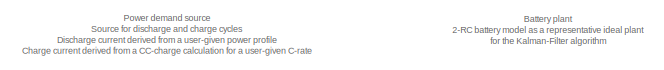
[diagram: root canvas - part 1/3, top left region]
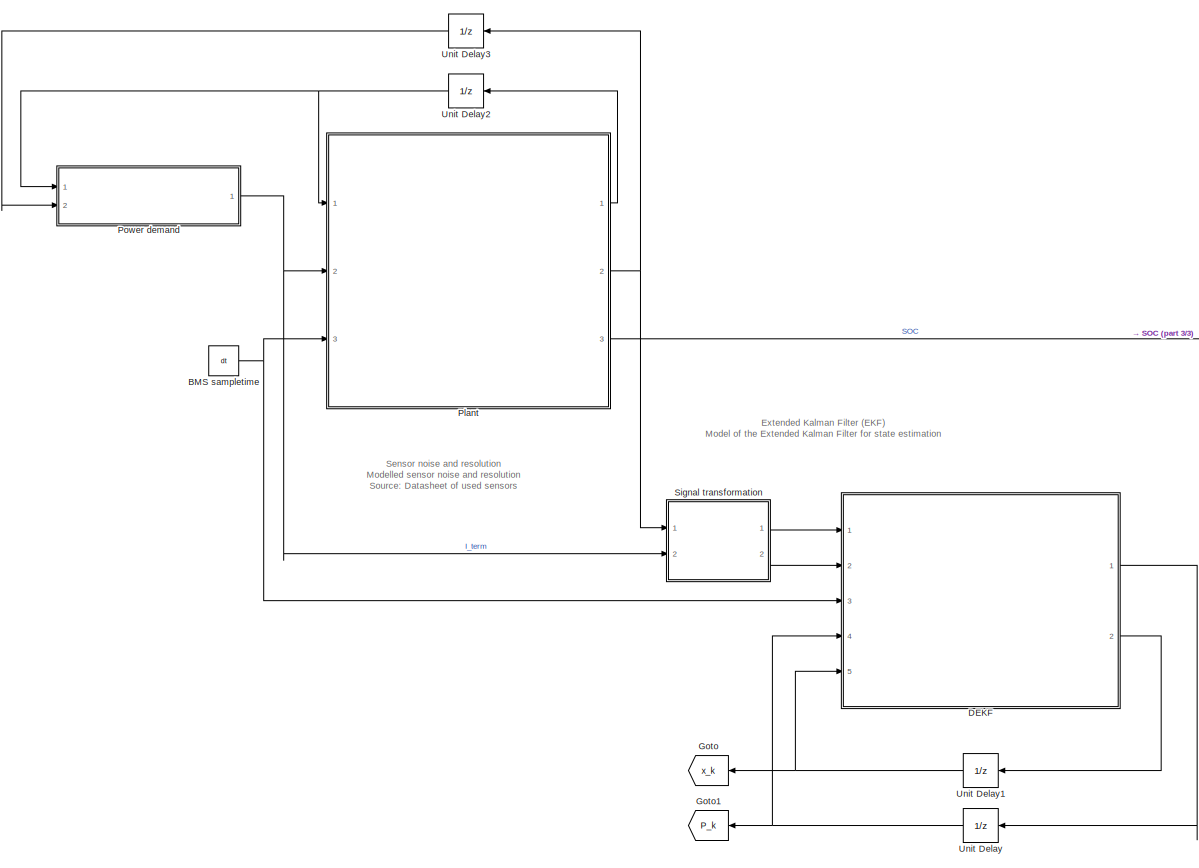
[diagram: root canvas - part 2/3, center side, full height]
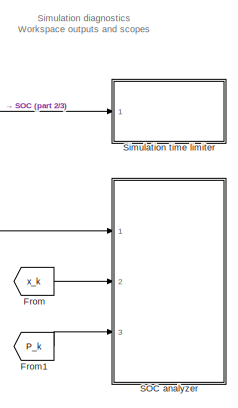
[diagram: root canvas - part 3/3, middle right region]
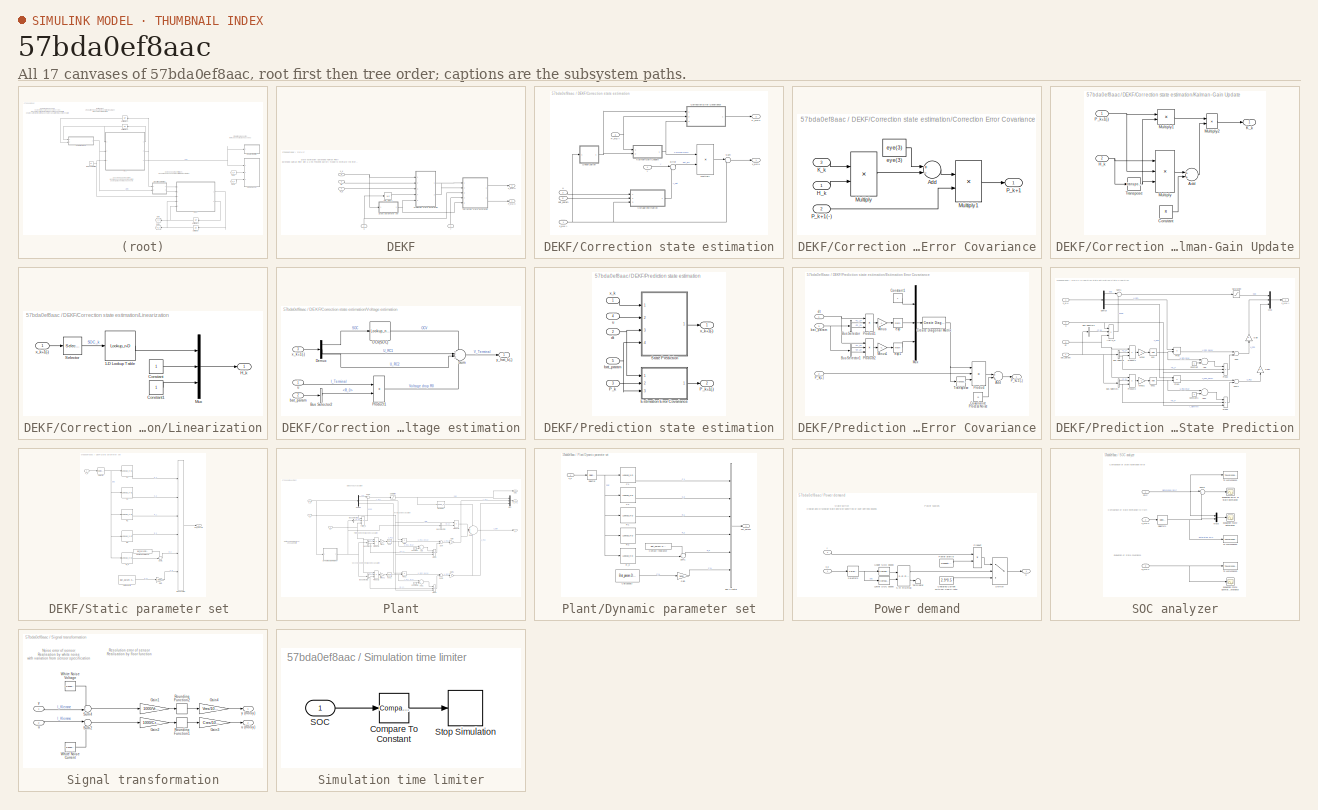
[diagram: thumbnail index - all 17 canvases of the model, root first then tree order]
MODEL slx_57bda0ef8aac
KIND model
CONFIG AbsTol = auto
CONFIG EnableMultiTasking = on
CONFIG FixedStep = dt
CONFIG MaxStep = auto
CONFIG MinStep = auto
CONFIG PreLoadFcn = % Quest\nchoice = questdlg('Would you like to load an initial dataset to your workspace?', ...\n	'Simulink', ...\n	'Yes', 'No', 'No');\n% Handle response\nswitch choice\n    case 'Yes'\n        load('Initialization.mat')\n    case 'No'\n    clearvars choice\nend
CONFIG RelTol = 1e-3
CONFIG SampleTimeConstraint = Unconstrained
CONFIG Solver = FixedStepDiscrete
CONFIG SolverName = FixedStepDiscrete
CONFIG StartTime = 0.0
CONFIG StopTime = inf
BLOCK [Constant] BMS sampletime
  Value = dt
BLOCK [SubSystem] DEKF
  Ports = [5, 2]
  RequestExecContextInheritance = off
  Variant = off
BLOCK [SubSystem] DEKF/Correction state estimation
  Ports = [5, 2]
  RequestExecContextInheritance = off
  Variant = off
BLOCK [SubSystem] DEKF/Correction state estimation/Correction Error Covariance
  Ports = [3, 1]
  RequestExecContextInheritance = off
  Variant = off
BLOCK [Sum] DEKF/Correction state estimation/Correction Error Covariance/Add
  InputSameDT = off
  Inputs = +-
  OutDataTypeStr = Inherit: Inherit via internal rule
  Ports = [2, 1]
  SaturateOnIntegerOverflow = off
BLOCK [Inport] DEKF/Correction state estimation/Correction Error Covariance/H_k
  IconDisplay = Port number
BLOCK [Inport] DEKF/Correction state estimation/Correction Error Covariance/K_k
  IconDisplay = Port number
  Port = 3
BLOCK [Product] DEKF/Correction state estimation/Correction Error Covariance/Multiply
  InputSameDT = off
  Inputs = **
  Multiplication = Matrix(*)
  OutDataTypeStr = Inherit: Inherit via internal rule
  Ports = [2, 1]
  RndMeth = Floor
  SaturateOnIntegerOverflow = off
BLOCK [Product] DEKF/Correction state estimation/Correction Error Covariance/Multiply1
  InputSameDT = off
  Inputs = **
  Multiplication = Matrix(*)
  OutDataTypeStr = Inherit: Inherit via internal rule
  Ports = [2, 1]
  RndMeth = Floor
  SaturateOnIntegerOverflow = off
BLOCK [Outport] DEKF/Correction state estimation/Correction Error Covariance/P_k+1
  IconDisplay = Port number
BLOCK [Inport] DEKF/Correction state estimation/Correction Error Covariance/P_k+1(-)
  IconDisplay = Port number
  Port = 2
BLOCK [Constant] DEKF/Correction state estimation/Correction Error Covariance/eye(3)
  Value = eye(3)
BLOCK [Sum] DEKF/Correction state estimation/Error
  IconShape = round
  InputSameDT = off
  Inputs = |+-
  OutDataTypeStr = Inherit: Inherit via internal rule
  Ports = [2, 1]
  SaturateOnIntegerOverflow = off
BLOCK [SubSystem] DEKF/Correction state estimation/Kalman-Gain Update
  Ports = [2, 1]
  RequestExecContextInheritance = off
  Variant = off
BLOCK [Sum] DEKF/Correction state estimation/Kalman-Gain Update/Add
  InputSameDT = off
  OutDataTypeStr = Inherit: Inherit via internal rule
  Ports = [2, 1]
  SaturateOnIntegerOverflow = off
BLOCK [Constant] DEKF/Correction state estimation/Kalman-Gain Update/Constant
  Value = R
BLOCK [Inport] DEKF/Correction state estimation/Kalman-Gain Update/H_k
  IconDisplay = Port number
  Port = 2
BLOCK [Outport] DEKF/Correction state estimation/Kalman-Gain Update/K_k
  IconDisplay = Port number
BLOCK [Product] DEKF/Correction state estimation/Kalman-Gain Update/Multiply
  InputSameDT = off
  Inputs = ***
  Multiplication = Matrix(*)
  OutDataTypeStr = Inherit: Inherit via internal rule
  Ports = [3, 1]
  RndMeth = Floor
  SaturateOnIntegerOverflow = off
BLOCK [Product] DEKF/Correction state estimation/Kalman-Gain Update/Multiply1
  InputSameDT = off
  Inputs = **
  Multiplication = Matrix(*)
  OutDataTypeStr = Inherit: Inherit via internal rule
  Ports = [2, 1]
  RndMeth = Floor
  SaturateOnIntegerOverflow = off
BLOCK [Product] DEKF/Correction state estimation/Kalman-Gain Update/Multiply2
  InputSameDT = off
  Inputs = */
  Multiplication = Matrix(*)
  OutDataTypeStr = Inherit: Inherit via internal rule
  Ports = [2, 1]
  RndMeth = Floor
  SaturateOnIntegerOverflow = off
BLOCK [Inport] DEKF/Correction state estimation/Kalman-Gain Update/P_k+1(-)
  IconDisplay = Port number
BLOCK [Math] DEKF/Correction state estimation/Kalman-Gain Update/Transpose
  Operator = transpose
  Ports = [1, 1]
BLOCK [SubSystem] DEKF/Correction state estimation/Linearization
  Ports = [1, 1]
  RequestExecContextInheritance = off
  Variant = off
BLOCK [Lookup_n-D] DEKF/Correction state estimation/Linearization/1-D Lookup Table
  BreakpointsForDimension1 = Bat_param.Static.OCV.SOC
  ExtrapMethod = Clip
  InternalRulePriority = Speed
  NumberOfTableDimensions = 1
  Ports = [1, 1]
  RndMeth = Simplest
  Table = (size(Bat_param.Static.OCV.U,2)-1)*(gradient(Bat_param.Static.OCV.U))
  UseLastTableValue = on
BLOCK [Constant] DEKF/Correction state estimation/Linearization/Constant
BLOCK [Constant] DEKF/Correction state estimation/Linearization/Constant1
BLOCK [Outport] DEKF/Correction state estimation/Linearization/H_k
  IconDisplay = Port number
  PortDimensions = [1 3]
BLOCK [Mux] DEKF/Correction state estimation/Linearization/Mux
  DisplayOption = bar
  Inputs = 3
  Ports = [3, 1]
BLOCK [Selector] DEKF/Correction state estimation/Linearization/Selector
  IndexOptions = Index vector (dialog)
  Indices = [1]
  InputPortWidth = 3
  OutputSizes = 1
  Ports = [1, 1]
BLOCK [Inport] DEKF/Correction state estimation/Linearization/x_k+1(-)
  IconDisplay = Port number
BLOCK [Product] DEKF/Correction state estimation/Multiply
  InputSameDT = off
  Inputs = **
  Multiplication = Matrix(*)
  OutDataTypeStr = Inherit: Inherit via internal rule
  Ports = [2, 1]
  RndMeth = Floor
  SaturateOnIntegerOverflow = off
BLOCK [Outport] DEKF/Correction state estimation/P_k+1(+)
  IconDisplay = Port number
  Port = 2
BLOCK [Inport] DEKF/Correction state estimation/P_k+1(-)
  IconDisplay = Port number
  Port = 2
BLOCK [Sum] DEKF/Correction state estimation/Sum
  IconShape = round
  InputSameDT = off
  Inputs = |++
  OutDataTypeStr = Inherit: Inherit via internal rule
  Ports = [2, 1]
  SaturateOnIntegerOverflow = off
BLOCK [SubSystem] DEKF/Correction state estimation/Voltage estimation
  Ports = [3, 1]
  RequestExecContextInheritance = off
  Variant = off
BLOCK [BusSelector] DEKF/Correction state estimation/Voltage estimation/Bus Selector2
  OutputAsBus = off
  OutputSignals = R_0
  Ports = [1, 1]
BLOCK [Demux] DEKF/Correction state estimation/Voltage estimation/Demux
  DisplayOption = bar
  Outputs = 3
  Ports = [1, 3]
BLOCK [Lookup_n-D] DEKF/Correction state estimation/Voltage estimation/OCV(SOC)
  BreakpointsForDimension1 = Bat_param.Static.OCV.SOC
  ExtrapMethod = Clip
  InternalRulePriority = Speed
  NumberOfTableDimensions = 1
  Ports = [1, 1]
  RndMeth = Simplest
  Table = Bat_param.Static.OCV.U
  UseLastTableValue = on
BLOCK [Product] DEKF/Correction state estimation/Voltage estimation/Product1
  InputSameDT = off
  Inputs = **
  OutDataTypeStr = Inherit: Inherit via internal rule
  Ports = [2, 1]
  RndMeth = Floor
  SaturateOnIntegerOverflow = off
BLOCK [Sum] DEKF/Correction state estimation/Voltage estimation/Sum
  IconShape = round
  InputSameDT = off
  Inputs = ++++
  OutDataTypeStr = Inherit: Inherit via internal rule
  Ports = [4, 1]
  SaturateOnIntegerOverflow = off
BLOCK [Inport] DEKF/Correction state estimation/Voltage estimation/bat_param
  IconDisplay = Port number
  Port = 2
BLOCK [Inport] DEKF/Correction state estimation/Voltage estimation/u
  IconDisplay = Port number
BLOCK [Inport] DEKF/Correction state estimation/Voltage estimation/x_k+1(-)
  IconDisplay = Port number
  Port = 3
  PortDimensions = [3 1]
BLOCK [Outport] DEKF/Correction state estimation/Voltage estimation/y_hat_k(-)
  IconDisplay = Port number
BLOCK [Inport] DEKF/Correction state estimation/bat_param
  IconDisplay = Port number
  Port = 5
BLOCK [Inport] DEKF/Correction state estimation/u
  IconDisplay = Port number
  Port = 3
BLOCK [Outport] DEKF/Correction state estimation/x_k+1(+)
  IconDisplay = Port number
BLOCK [Inport] DEKF/Correction state estimation/x_k+1(-)
  IconDisplay = Port number
BLOCK [Inport] DEKF/Correction state estimation/y
  IconDisplay = Port number
  Port = 4
BLOCK [Inport] DEKF/P_k
  IconDisplay = Port number
  Port = 4
BLOCK [Outport] DEKF/P_k+1(+)
  IconDisplay = Port number
BLOCK [SubSystem] DEKF/Prediction state estimation
  Ports = [5, 2]
  RequestExecContextInheritance = off
  Variant = off
BLOCK [SubSystem] DEKF/Prediction state estimation/Estimation Error Covariance
  Ports = [3, 1]
  RequestExecContextInheritance = off
  Variant = off
BLOCK [Sum] DEKF/Prediction state estimation/Estimation Error Covariance/Add
  InputSameDT = off
  OutDataTypeStr = Inherit: Inherit via internal rule
  Ports = [2, 1]
  SaturateOnIntegerOverflow = off
BLOCK [BusSelector] DEKF/Prediction state estimation/Estimation Error Covariance/Bus Selector
  OutputAsBus = off
  OutputSignals = C_1,R_1
  Ports = [1, 2]
BLOCK [BusSelector] DEKF/Prediction state estimation/Estimation Error Covariance/Bus Selector1
  OutputAsBus = off
  OutputSignals = C_2,R_2
  Ports = [1, 2]
BLOCK [Constant] DEKF/Prediction state estimation/Estimation Error Covariance/Constant1
BLOCK [Constant] DEKF/Prediction state estimation/Estimation Error Covariance/Covariance Process Noise
  Value = Q
BLOCK [Reference] DEKF/Prediction state estimation/Estimation Error Covariance/Create Diagonal Matrix  REF=dspmtrx3/Create Diagonal
Matrix
  Ports = [1, 1]
  SourceBlock = dspmtrx3/Create Diagonal\nMatrix
  SourceProductBaseCode = DS
  SourceProductName = DSP System Toolbox
  SourceType = Create Diagonal Matrix
BLOCK [Gain] DEKF/Prediction state estimation/Estimation Error Covariance/Minus
  Gain = -1
  OutDataTypeStr = Inherit: Inherit via internal rule
  ParamDataTypeStr = Inherit: Inherit via internal rule
  SaturateOnIntegerOverflow = off
BLOCK [Gain] DEKF/Prediction state estimation/Estimation Error Covariance/Minus1
  Gain = -1
  OutDataTypeStr = Inherit: Inherit via internal rule
  ParamDataTypeStr = Inherit: Inherit via internal rule
  SaturateOnIntegerOverflow = off
BLOCK [Mux] DEKF/Prediction state estimation/Estimation Error Covariance/Mux
  DisplayOption = bar
  Inputs = 3
  Ports = [3, 1]
BLOCK [Inport] DEKF/Prediction state estimation/Estimation Error Covariance/P_k(+)
  IconDisplay = Port number
  Port = 2
BLOCK [Outport] DEKF/Prediction state estimation/Estimation Error Covariance/P_k+1(-)
  IconDisplay = Port number
BLOCK [Product] DEKF/Prediction state estimation/Estimation Error Covariance/Product
  InputSameDT = off
  Inputs = ***
  Multiplication = Matrix(*)
  OutDataTypeStr = Inherit: Inherit via internal rule
  Ports = [3, 1]
  RndMeth = Floor
  SaturateOnIntegerOverflow = off
BLOCK [Product] DEKF/Prediction state estimation/Estimation Error Covariance/Product1
  InputSameDT = off
  Inputs = *//
  OutDataTypeStr = Inherit: Inherit via internal rule
  Ports = [3, 1]
  RndMeth = Floor
  SaturateOnIntegerOverflow = off
BLOCK [Product] DEKF/Prediction state estimation/Estimation Error Covariance/Product2
  InputSameDT = off
  Inputs = *//
  OutDataTypeStr = Inherit: Inherit via internal rule
  Ports = [3, 1]
  RndMeth = Floor
  SaturateOnIntegerOverflow = off
BLOCK [Math] DEKF/Prediction state estimation/Estimation Error Covariance/Transpose
  Operator = transpose
  Ports = [1, 1]
BLOCK [Inport] DEKF/Prediction state estimation/Estimation Error Covariance/bat_param
  IconDisplay = Port number
  Port = 3
BLOCK [Inport] DEKF/Prediction state estimation/Estimation Error Covariance/dt
  IconDisplay = Port number
BLOCK [Math] DEKF/Prediction state estimation/Estimation Error Covariance/exp
  Ports = [1, 1]
BLOCK [Math] DEKF/Prediction state estimation/Estimation Error Covariance/exp1
  Ports = [1, 1]
BLOCK [Inport] DEKF/Prediction state estimation/P_k
  IconDisplay = Port number
  Port = 3
  PortDimensions = [3 3]
BLOCK [Outport] DEKF/Prediction state estimation/P_k+1(-)
  IconDisplay = Port number
  Port = 2
  PortDimensions = [3 3]
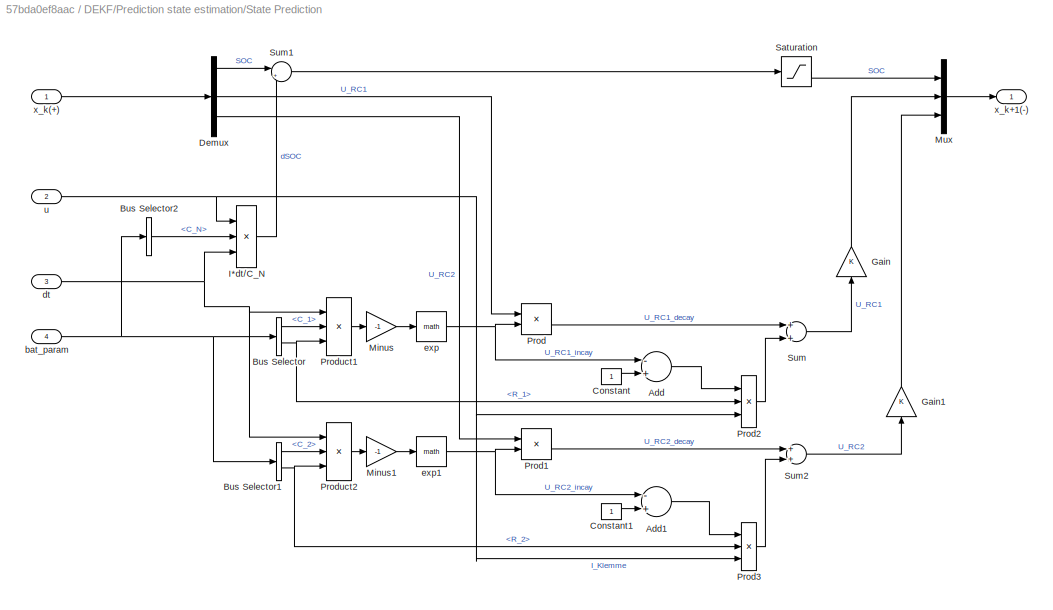
BLOCK [SubSystem] DEKF/Prediction state estimation/State Prediction
  Ports = [4, 1]
  RequestExecContextInheritance = off
  Variant = off
BLOCK [Sum] DEKF/Prediction state estimation/State Prediction/Add
  InputSameDT = off
  Inputs = -+
  OutDataTypeStr = Inherit: Inherit via internal rule
  Ports = [2, 1]
  SaturateOnIntegerOverflow = off
BLOCK [Sum] DEKF/Prediction state estimation/State Prediction/Add1
  InputSameDT = off
  Inputs = -+
  OutDataTypeStr = Inherit: Inherit via internal rule
  Ports = [2, 1]
  SaturateOnIntegerOverflow = off
BLOCK [BusSelector] DEKF/Prediction state estimation/State Prediction/Bus Selector
  OutputAsBus = off
  OutputSignals = C_1,R_1
  Ports = [1, 2]
BLOCK [BusSelector] DEKF/Prediction state estimation/State Prediction/Bus Selector1
  OutputAsBus = off
  OutputSignals = C_2,R_2
  Ports = [1, 2]
BLOCK [BusSelector] DEKF/Prediction state estimation/State Prediction/Bus Selector2
  OutputAsBus = off
  OutputSignals = C_N
  Ports = [1, 1]
BLOCK [Constant] DEKF/Prediction state estimation/State Prediction/Constant
BLOCK [Constant] DEKF/Prediction state estimation/State Prediction/Constant1
BLOCK [Demux] DEKF/Prediction state estimation/State Prediction/Demux
  DisplayOption = bar
  Outputs = 3
  Ports = [1, 3]
BLOCK [Gain] DEKF/Prediction state estimation/State Prediction/Gain
  OutDataTypeStr = Inherit: Inherit via internal rule
  ParamDataTypeStr = Inherit: Inherit via internal rule
  SaturateOnIntegerOverflow = off
BLOCK [Gain] DEKF/Prediction state estimation/State Prediction/Gain1
  OutDataTypeStr = Inherit: Inherit via internal rule
  ParamDataTypeStr = Inherit: Inherit via internal rule
  SaturateOnIntegerOverflow = off
BLOCK [Product] DEKF/Prediction state estimation/State Prediction/I*dt//C_N
  InputSameDT = off
  Inputs = */*
  OutDataTypeStr = Inherit: Inherit via internal rule
  Ports = [3, 1]
  RndMeth = Floor
  SaturateOnIntegerOverflow = off
BLOCK [Gain] DEKF/Prediction state estimation/State Prediction/Minus
  Gain = -1
  OutDataTypeStr = Inherit: Inherit via internal rule
  ParamDataTypeStr = Inherit: Inherit via internal rule
  SaturateOnIntegerOverflow = off
BLOCK [Gain] DEKF/Prediction state estimation/State Prediction/Minus1
  Gain = -1
  OutDataTypeStr = Inherit: Inherit via internal rule
  ParamDataTypeStr = Inherit: Inherit via internal rule
  SaturateOnIntegerOverflow = off
BLOCK [Mux] DEKF/Prediction state estimation/State Prediction/Mux
  DisplayOption = bar
  Inputs = 3
  Ports = [3, 1]
BLOCK [Product] DEKF/Prediction state estimation/State Prediction/Prod
  InputSameDT = off
  Inputs = **
  OutDataTypeStr = Inherit: Inherit via internal rule
  Ports = [2, 1]
  RndMeth = Floor
  SaturateOnIntegerOverflow = off
BLOCK [Product] DEKF/Prediction state estimation/State Prediction/Prod1
  InputSameDT = off
  Inputs = **
  OutDataTypeStr = Inherit: Inherit via internal rule
  Ports = [2, 1]
  RndMeth = Floor
  SaturateOnIntegerOverflow = off
BLOCK [Product] DEKF/Prediction state estimation/State Prediction/Prod2
  InputSameDT = off
  Inputs = ***
  OutDataTypeStr = Inherit: Inherit via internal rule
  Ports = [3, 1]
  RndMeth = Floor
  SaturateOnIntegerOverflow = off
BLOCK [Product] DEKF/Prediction state estimation/State Prediction/Prod3
  InputSameDT = off
  Inputs = ***
  OutDataTypeStr = Inherit: Inherit via internal rule
  Ports = [3, 1]
  RndMeth = Floor
  SaturateOnIntegerOverflow = off
BLOCK [Product] DEKF/Prediction state estimation/State Prediction/Product1
  InputSameDT = off
  Inputs = *//
  OutDataTypeStr = Inherit: Inherit via internal rule
  Ports = [3, 1]
  RndMeth = Floor
  SaturateOnIntegerOverflow = off
BLOCK [Product] DEKF/Prediction state estimation/State Prediction/Product2
  InputSameDT = off
  Inputs = *//
  OutDataTypeStr = Inherit: Inherit via internal rule
  Ports = [3, 1]
  RndMeth = Floor
  SaturateOnIntegerOverflow = off
BLOCK [Saturate] DEKF/Prediction state estimation/State Prediction/Saturation
  InputPortMap = u0
  LowerLimit = 0
  Ports = [1, 1]
  UpperLimit = 1
BLOCK [Sum] DEKF/Prediction state estimation/State Prediction/Sum
  InputSameDT = off
  OutDataTypeStr = Inherit: Inherit via internal rule
  Ports = [2, 1]
  SaturateOnIntegerOverflow = off
BLOCK [Sum] DEKF/Prediction state estimation/State Prediction/Sum1
  IconShape = round
  InputSameDT = off
  Inputs = |++
  OutDataTypeStr = Inherit: Inherit via internal rule
  Ports = [2, 1]
  SaturateOnIntegerOverflow = off
BLOCK [Sum] DEKF/Prediction state estimation/State Prediction/Sum2
  InputSameDT = off
  OutDataTypeStr = Inherit: Inherit via internal rule
  Ports = [2, 1]
  SaturateOnIntegerOverflow = off
BLOCK [Inport] DEKF/Prediction state estimation/State Prediction/bat_param
  IconDisplay = Port number
  Port = 4
BLOCK [Inport] DEKF/Prediction state estimation/State Prediction/dt
  IconDisplay = Port number
  Port = 3
  PortDimensions = [1 1]
BLOCK [Math] DEKF/Prediction state estimation/State Prediction/exp
  Ports = [1, 1]
BLOCK [Math] DEKF/Prediction state estimation/State Prediction/exp1
  Ports = [1, 1]
BLOCK [Inport] DEKF/Prediction state estimation/State Prediction/u
  IconDisplay = Port number
  Port = 2
  PortDimensions = [1 1]
BLOCK [Inport] DEKF/Prediction state estimation/State Prediction/x_k(+)
  IconDisplay = Port number
  PortDimensions = [3 1]
BLOCK [Outport] DEKF/Prediction state estimation/State Prediction/x_k+1(-)
  IconDisplay = Port number
  PortDimensions = [3 1]
BLOCK [Inport] DEKF/Prediction state estimation/bat_param
  IconDisplay = Port number
  Port = 5
BLOCK [Inport] DEKF/Prediction state estimation/dt
  IconDisplay = Port number
  Port = 2
BLOCK [Inport] DEKF/Prediction state estimation/u
  IconDisplay = Port number
  Port = 4
BLOCK [Inport] DEKF/Prediction state estimation/x_k
  IconDisplay = Port number
BLOCK [Outport] DEKF/Prediction state estimation/x_k+1(-)
  IconDisplay = Port number
BLOCK [SubSystem] DEKF/Static parameter set 
  Ports = [1, 1]
  RequestExecContextInheritance = off
  Variant = off
BLOCK [BusCreator] DEKF/Static parameter set /Bus Creator
  DisplayOption = bar
  InheritFromInputs = on
  Inputs = 6
  Ports = [6, 1]
BLOCK [Lookup_n-D] DEKF/Static parameter set /C1
  BreakpointsForDimension1 = Bat_param.Static.SOC
  BreakpointsForDimension2 = Bat_param.Static.C_rate
  BreakpointsForDimension3 = temperature_LTrange
  ExtrapMethod = Clip
  InternalRulePriority = Speed
  NumberOfTableDimensions = 1
  Ports = [1, 1]
  RndMeth = Simplest
  Table = Bat_param.Static.C_1
  UseLastTableValue = on
BLOCK [Lookup_n-D] DEKF/Static parameter set /C2
  BreakpointsForDimension1 = Bat_param.Static.SOC
  BreakpointsForDimension2 = Bat_param.Static.C_rate
  BreakpointsForDimension3 = temperature_LTrange
  ExtrapMethod = Clip
  InternalRulePriority = Speed
  NumberOfTableDimensions = 1
  Ports = [1, 1]
  RndMeth = Simplest
  Table = Bat_param.Static.C_2
  UseLastTableValue = on
BLOCK [Constant] DEKF/Static parameter set /Cell capacity
  Value = Bat_param.Static.C_n
BLOCK [Constant] DEKF/Static parameter set /Contact resistance
  Value = Bat_param.Static.R_con
BLOCK [Gain] DEKF/Static parameter set /Gain
  Gain = 3600
  OutDataTypeStr = Inherit: Inherit via internal rule
  ParamDataTypeStr = Inherit: Inherit via internal rule
  SaturateOnIntegerOverflow = off
BLOCK [Lookup_n-D] DEKF/Static parameter set /R1
  BreakpointsForDimension1 = Bat_param.Static.SOC
  BreakpointsForDimension2 = Bat_param.Static.C_rate
  BreakpointsForDimension3 = temperature_LTrange
  ExtrapMethod = Clip
  InternalRulePriority = Speed
  NumberOfTableDimensions = 1
  Ports = [1, 1]
  RndMeth = Simplest
  Table = Bat_param.Static.R_1
  UseLastTableValue = on
BLOCK [Lookup_n-D] DEKF/Static parameter set /R2
  BreakpointsForDimension1 = Bat_param.Static.SOC
  BreakpointsForDimension2 = Bat_param.Static.C_rate
  BreakpointsForDimension3 = temperature_LTrange
  ExtrapMethod = Clip
  InternalRulePriority = Speed
  NumberOfTableDimensions = 1
  Ports = [1, 1]
  RndMeth = Simplest
  Table = Bat_param.Static.R_2
  UseLastTableValue = on
BLOCK [Lookup_n-D] DEKF/Static parameter set /R_0
  BreakpointsForDimension1 = Bat_param.Static.SOC
  BreakpointsForDimension2 = Bat_param.Dyn.C_rate
  BreakpointsForDimension3 = temperature_LTrange
  ExtrapMethod = Clip
  InternalRulePriority = Speed
  NumberOfTableDimensions = 1
  Ports = [1, 1]
  RndMeth = Simplest
  Table = Bat_param.Static.R_0
  UseLastTableValue = on
BLOCK [Selector] DEKF/Static parameter set /Selector
  IndexOptions = Index vector (dialog)
  Indices = 1
  InputPortWidth = 3
  OutputSizes = 1
  Ports = [1, 1]
BLOCK [Sum] DEKF/Static parameter set /Sum1
  IconShape = round
  InputSameDT = off
  Inputs = ++|
  OutDataTypeStr = Inherit: Inherit via internal rule
  Ports = [2, 1]
  SaturateOnIntegerOverflow = off
BLOCK [Outport] DEKF/Static parameter set /bat_param
  IconDisplay = Port number
BLOCK [Inport] DEKF/Static parameter set /x_k
  IconDisplay = Port number
  PortDimensions = [3 1]
BLOCK [UnitDelay] DEKF/Unit Delay1
  InputProcessing = Elements as channels (sample based)
  SampleTime = -1
BLOCK [Inport] DEKF/dt
  IconDisplay = Port number
  Port = 3
BLOCK [Inport] DEKF/u
  IconDisplay = Port number
  Port = 2
  PortDimensions = [1 1]
BLOCK [Inport] DEKF/x_k
  IconDisplay = Port number
  Port = 5
  PortDimensions = [3 1]
BLOCK [Outport] DEKF/x_k+1(+)
  IconDisplay = Port number
  Port = 2
BLOCK [Inport] DEKF/y
  IconDisplay = Port number
  PortDimensions = 1
BLOCK [From] From
  GotoTag = x_k
BLOCK [From] From1
  GotoTag = P_k
BLOCK [Goto] Goto
  GotoTag = x_k
BLOCK [Goto] Goto1
  GotoTag = P_k
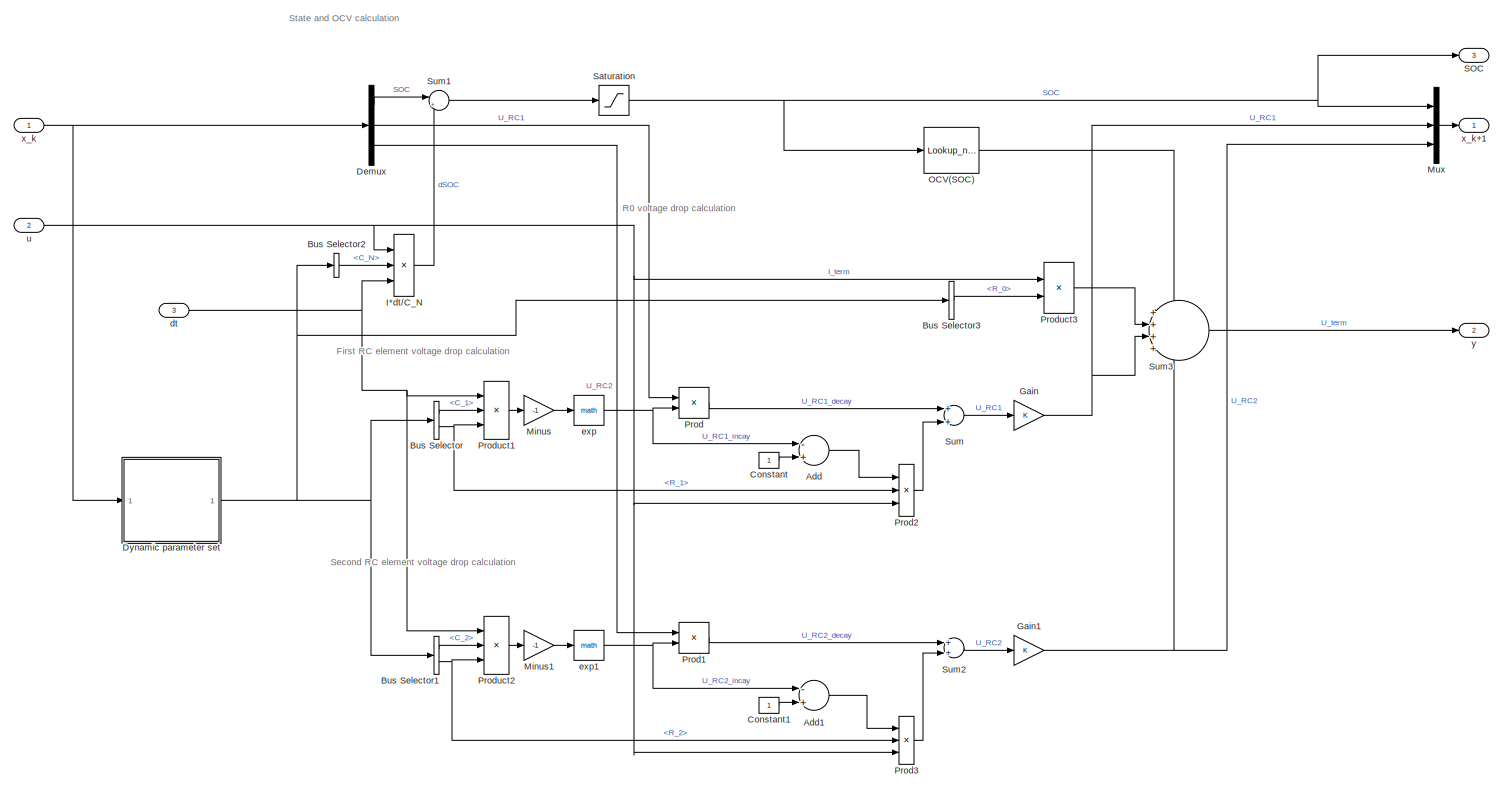
[diagram: Plant - part 1/2, most of the canvas]
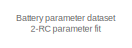
[diagram: Plant - part 2/2, middle left region]
BLOCK [SubSystem] Plant
  Ports = [3, 3]
  RequestExecContextInheritance = off
  Variant = off
BLOCK [Sum] Plant/Add
  InputSameDT = off
  Inputs = -+
  OutDataTypeStr = Inherit: Inherit via internal rule
  Ports = [2, 1]
  SaturateOnIntegerOverflow = off
BLOCK [Sum] Plant/Add1
  InputSameDT = off
  Inputs = -+
  OutDataTypeStr = Inherit: Inherit via internal rule
  Ports = [2, 1]
  SaturateOnIntegerOverflow = off
BLOCK [BusSelector] Plant/Bus Selector
  OutputAsBus = off
  OutputSignals = C_1,R_1
  Ports = [1, 2]
BLOCK [BusSelector] Plant/Bus Selector1
  OutputAsBus = off
  OutputSignals = C_2,R_2
  Ports = [1, 2]
BLOCK [BusSelector] Plant/Bus Selector2
  OutputAsBus = off
  OutputSignals = C_N
  Ports = [1, 1]
BLOCK [BusSelector] Plant/Bus Selector3
  OutputAsBus = off
  OutputSignals = R_0
  Ports = [1, 1]
BLOCK [Constant] Plant/Constant
BLOCK [Constant] Plant/Constant1
BLOCK [Demux] Plant/Demux
  DisplayOption = bar
  Outputs = 3
  Ports = [1, 3]
BLOCK [SubSystem] Plant/Dynamic parameter set
  Ports = [1, 1]
  RequestExecContextInheritance = off
  Variant = off
BLOCK [BusCreator] Plant/Dynamic parameter set/Bus Creator
  DisplayOption = bar
  InheritFromInputs = on
  Inputs = 6
  Ports = [6, 1]
BLOCK [Lookup_n-D] Plant/Dynamic parameter set/C1
  BreakpointsForDimension1 = Bat_param.Dyn.SOC
  BreakpointsForDimension2 = Bat_param.Dyn.C_rate
  BreakpointsForDimension3 = temperature_LTrange
  ExtrapMethod = Clip
  InternalRulePriority = Speed
  NumberOfTableDimensions = 1
  Ports = [1, 1]
  RndMeth = Simplest
  Table = Bat_param.Dyn.C_1
  UseLastTableValue = on
BLOCK [Lookup_n-D] Plant/Dynamic parameter set/C2
  BreakpointsForDimension1 = Bat_param.Dyn.SOC
  BreakpointsForDimension2 = Bat_param.Dyn.C_rate
  BreakpointsForDimension3 = temperature_LTrange
  ExtrapMethod = Clip
  InternalRulePriority = Speed
  NumberOfTableDimensions = 1
  Ports = [1, 1]
  RndMeth = Simplest
  Table = Bat_param.Dyn.C_2
  UseLastTableValue = on
BLOCK [Constant] Plant/Dynamic parameter set/Cell capacity
  Value = Bat_param.Dyn.C_n
BLOCK [Constant] Plant/Dynamic parameter set/Contact resistance
  Value = Bat_param.Dyn.R_con
BLOCK [Gain] Plant/Dynamic parameter set/Gain
  Gain = 3600
  OutDataTypeStr = Inherit: Inherit via internal rule
  ParamDataTypeStr = Inherit: Inherit via internal rule
  SaturateOnIntegerOverflow = off
BLOCK [Lookup_n-D] Plant/Dynamic parameter set/R1
  BreakpointsForDimension1 = Bat_param.Dyn.SOC
  BreakpointsForDimension2 = Bat_param.Dyn.C_rate
  BreakpointsForDimension3 = temperature_LTrange
  ExtrapMethod = Clip
  InternalRulePriority = Speed
  NumberOfTableDimensions = 1
  Ports = [1, 1]
  RndMeth = Simplest
  Table = Bat_param.Dyn.R_1
  UseLastTableValue = on
BLOCK [Lookup_n-D] Plant/Dynamic parameter set/R2
  BreakpointsForDimension1 = Bat_param.Dyn.SOC
  BreakpointsForDimension2 = Bat_param.Dyn.C_rate
  BreakpointsForDimension3 = temperature_LTrange
  ExtrapMethod = Clip
  InternalRulePriority = Speed
  NumberOfTableDimensions = 1
  Ports = [1, 1]
  RndMeth = Simplest
  Table = Bat_param.Dyn.R_2
  UseLastTableValue = on
BLOCK [Lookup_n-D] Plant/Dynamic parameter set/R_0
  BreakpointsForDimension1 = Bat_param.Dyn.SOC
  BreakpointsForDimension2 = Bat_param.Dyn.C_rate
  BreakpointsForDimension3 = temperature_LTrange
  ExtrapMethod = Clip
  InternalRulePriority = Speed
  NumberOfTableDimensions = 1
  Ports = [1, 1]
  RndMeth = Simplest
  Table = Bat_param.Dyn.R_0
  UseLastTableValue = on
BLOCK [Selector] Plant/Dynamic parameter set/Selector
  IndexOptions = Index vector (dialog)
  Indices = 1
  InputPortWidth = 3
  OutputSizes = 1
  Ports = [1, 1]
BLOCK [Sum] Plant/Dynamic parameter set/Sum1
  IconShape = round
  InputSameDT = off
  Inputs = ++|
  OutDataTypeStr = Inherit: Inherit via internal rule
  Ports = [2, 1]
  SaturateOnIntegerOverflow = off
BLOCK [Outport] Plant/Dynamic parameter set/bat_param
  IconDisplay = Port number
BLOCK [Inport] Plant/Dynamic parameter set/x_k
  IconDisplay = Port number
  PortDimensions = [3 1]
BLOCK [Gain] Plant/Gain
  OutDataTypeStr = Inherit: Inherit via internal rule
  ParamDataTypeStr = Inherit: Inherit via internal rule
  SaturateOnIntegerOverflow = off
BLOCK [Gain] Plant/Gain1
  OutDataTypeStr = Inherit: Inherit via internal rule
  ParamDataTypeStr = Inherit: Inherit via internal rule
  SaturateOnIntegerOverflow = off
BLOCK [Product] Plant/I*dt//C_N
  InputSameDT = off
  Inputs = */*
  OutDataTypeStr = Inherit: Inherit via internal rule
  Ports = [3, 1]
  RndMeth = Floor
  SaturateOnIntegerOverflow = off
BLOCK [Gain] Plant/Minus
  Gain = -1
  OutDataTypeStr = Inherit: Inherit via internal rule
  ParamDataTypeStr = Inherit: Inherit via internal rule
  SaturateOnIntegerOverflow = off
BLOCK [Gain] Plant/Minus1
  Gain = -1
  OutDataTypeStr = Inherit: Inherit via internal rule
  ParamDataTypeStr = Inherit: Inherit via internal rule
  SaturateOnIntegerOverflow = off
BLOCK [Mux] Plant/Mux
  DisplayOption = bar
  Inputs = 3
  Ports = [3, 1]
BLOCK [Lookup_n-D] Plant/OCV(SOC)
  BreakpointsForDimension1 = Bat_param.Dyn.OCV.SOC
  ExtrapMethod = Clip
  InternalRulePriority = Speed
  NumberOfTableDimensions = 1
  Ports = [1, 1]
  RndMeth = Simplest
  Table = Bat_param.Dyn.OCV.U
  UseLastTableValue = on
BLOCK [Product] Plant/Prod
  InputSameDT = off
  Inputs = **
  OutDataTypeStr = Inherit: Inherit via internal rule
  Ports = [2, 1]
  RndMeth = Floor
  SaturateOnIntegerOverflow = off
BLOCK [Product] Plant/Prod1
  InputSameDT = off
  Inputs = **
  OutDataTypeStr = Inherit: Inherit via internal rule
  Ports = [2, 1]
  RndMeth = Floor
  SaturateOnIntegerOverflow = off
BLOCK [Product] Plant/Prod2
  InputSameDT = off
  Inputs = ***
  OutDataTypeStr = Inherit: Inherit via internal rule
  Ports = [3, 1]
  RndMeth = Floor
  SaturateOnIntegerOverflow = off
BLOCK [Product] Plant/Prod3
  InputSameDT = off
  Inputs = ***
  OutDataTypeStr = Inherit: Inherit via internal rule
  Ports = [3, 1]
  RndMeth = Floor
  SaturateOnIntegerOverflow = off
BLOCK [Product] Plant/Product1
  InputSameDT = off
  Inputs = *//
  OutDataTypeStr = Inherit: Inherit via internal rule
  Ports = [3, 1]
  RndMeth = Floor
  SaturateOnIntegerOverflow = off
BLOCK [Product] Plant/Product2
  InputSameDT = off
  Inputs = *//
  OutDataTypeStr = Inherit: Inherit via internal rule
  Ports = [3, 1]
  RndMeth = Floor
  SaturateOnIntegerOverflow = off
BLOCK [Product] Plant/Product3
  InputSameDT = off
  Inputs = **
  OutDataTypeStr = Inherit: Inherit via internal rule
  Ports = [2, 1]
  RndMeth = Floor
  SaturateOnIntegerOverflow = off
BLOCK [Outport] Plant/SOC
  IconDisplay = Port number
  Port = 3
BLOCK [Saturate] Plant/Saturation
  InputPortMap = u0
  LowerLimit = 0
  Ports = [1, 1]
  UpperLimit = 1
BLOCK [Sum] Plant/Sum
  InputSameDT = off
  OutDataTypeStr = Inherit: Inherit via internal rule
  Ports = [2, 1]
  SaturateOnIntegerOverflow = off
BLOCK [Sum] Plant/Sum1
  IconShape = round
  InputSameDT = off
  Inputs = |++
  OutDataTypeStr = Inherit: Inherit via internal rule
  Ports = [2, 1]
  SaturateOnIntegerOverflow = off
BLOCK [Sum] Plant/Sum2
  InputSameDT = off
  OutDataTypeStr = Inherit: Inherit via internal rule
  Ports = [2, 1]
  SaturateOnIntegerOverflow = off
BLOCK [Sum] Plant/Sum3
  IconShape = round
  InputSameDT = off
  Inputs = ++++
  OutDataTypeStr = Inherit: Inherit via internal rule
  Ports = [4, 1]
  SaturateOnIntegerOverflow = off
BLOCK [Inport] Plant/dt
  IconDisplay = Port number
  Port = 3
BLOCK [Math] Plant/exp
  Ports = [1, 1]
BLOCK [Math] Plant/exp1
  Ports = [1, 1]
BLOCK [Inport] Plant/u
  IconDisplay = Port number
  Port = 2
  PortDimensions = [1 1]
BLOCK [Inport] Plant/x_k
  IconDisplay = Port number
  PortDimensions = [3 1]
BLOCK [Outport] Plant/x_k+1
  IconDisplay = Port number
BLOCK [Outport] Plant/y
  IconDisplay = Port number
  Port = 2
BLOCK [SubSystem] Power demand
  Ports = [2, 1]
  RequestExecContextInheritance = off
  Variant = off
BLOCK [Constant] Power demand/Charging Current with specified C-rate
  Value = 2.9*0.5
BLOCK [Reference] Power demand/Lower SOC bound  REF=simulink/Logic and Bit
Operations/Compare
To Constant
  Ports = [1, 1]
  SourceBlock = simulink/Logic and Bit\nOperations/Compare\nTo Constant
  SourceProductBaseCode = SL
  SourceProductName = Simulink
  SourceType = Compare To Constant
BLOCK [Reference] Power demand/Power profile  REF=simulink/Sources/Repeating
Sequence
  Ports = [0, 1]
  SourceBlock = simulink/Sources/Repeating\nSequence
  SourceProductBaseCode = SL
  SourceProductName = Simulink
  SourceType = Repeating table
BLOCK [Product] Power demand/Product
  InputSameDT = off
  Inputs = /*
  OutDataTypeStr = Inherit: Inherit via internal rule
  Ports = [2, 1]
  RndMeth = Floor
  SaturateOnIntegerOverflow = off
BLOCK [Reference] Power demand/S-R Flip-Flop  REF=simulink_extras/Flip Flops/S-R
Flip-Flop
  Ports = [2, 2]
  SourceBlock = simulink_extras/Flip Flops/S-R\nFlip-Flop
  SourceProductBaseCode = SL
  SourceProductName = Simulink
  SourceType = SRFlipFlop
BLOCK [Selector] Power demand/Selector3
  IndexOptions = Index vector (dialog)
  Indices = 1
  InputPortWidth = 3
  OutputSizes = 1
  Ports = [1, 1]
BLOCK [Switch] Power demand/Switch
  Criteria = u2 > Threshold
  InputSameDT = off
  SaturateOnIntegerOverflow = off
BLOCK [Terminator] Power demand/Terminator
BLOCK [Reference] Power demand/Upper SOC bound  REF=simulink/Logic and Bit
Operations/Compare
To Constant
  Ports = [1, 1]
  SourceBlock = simulink/Logic and Bit\nOperations/Compare\nTo Constant
  SourceProductBaseCode = SL
  SourceProductName = Simulink
  SourceType = Compare To Constant
BLOCK [Outport] Power demand/u
  IconDisplay = Port number
BLOCK [Inport] Power demand/x_k
  IconDisplay = Port number
BLOCK [Inport] Power demand/y
  IconDisplay = Port number
  Port = 2
BLOCK [SubSystem] SOC analyzer
  Ports = [3]
  RequestExecContextInheritance = off
  Variant = off
BLOCK [Scope] SOC analyzer/Evaluation Error of State Estimation
  NumInputPorts = 1
  Ports = [1]
  ScopeSpecificationString = Simulink.scopes.TimeScopeBlockCfg('CurrentConfiguration', extmgr.ConfigurationSet(extmgr.Configuration('Core','General UI',true),extmgr.Configuration('Core','Source UI',true),extmgr.Configuration('Sources','WiredSimulink',true,'DataLoggingVariableName','ScopeData2','DataLoggingSaveFormat','Array','DataLoggingDecimation','1','DataLoggingDecimateData',true),extmgr.Configuration('Visuals','Time Domai...<+1526ch>
BLOCK [Scope] SOC analyzer/Evaluation State Estimation
  NumInputPorts = 1
  Ports = [1]
  ScopeSpecificationString = Simulink.scopes.TimeScopeBlockCfg('CurrentConfiguration', extmgr.ConfigurationSet(extmgr.Configuration('Core','General UI',true),extmgr.Configuration('Core','Source UI',true),extmgr.Configuration('Sources','WiredSimulink',true,'DataLoggingVariableName','ScopeData4'),extmgr.Configuration('Visuals','Time Domain',true,'SerializedDisplays',{struct('MinYLimReal','-0.01254','MaxYLimReal','1.1125','YLabe...<+1456ch>
BLOCK [Scope] SOC analyzer/Evaluation State Estimation Covariance
  NumInputPorts = 1
  Ports = [1]
  ScopeSpecificationString = Simulink.scopes.TimeScopeBlockCfg('CurrentConfiguration', extmgr.ConfigurationSet(extmgr.Configuration('Core','General UI',true),extmgr.Configuration('Core','Source UI',true),extmgr.Configuration('Sources','WiredSimulink',true,'DataLoggingVariableName','ScopeData1','DataLoggingSaveFormat','Array','DataLoggingDecimation','1','DataLoggingDecimateData',true),extmgr.Configuration('Visuals','Time Domai...<+1475ch>
BLOCK [Mux] SOC analyzer/Mux3
  DisplayOption = bar
  Inputs = 2
  Ports = [2, 1]
BLOCK [Inport] SOC analyzer/P_k+1(+)
  IconDisplay = Port number
  Port = 3
BLOCK [Inport] SOC analyzer/SOC
  IconDisplay = Port number
BLOCK [Selector] SOC analyzer/Selector1
  IndexOptions = Index vector (dialog)
  Indices = [1]
  InputPortWidth = 3
  OutputSizes = 1
  Ports = [1, 1]
BLOCK [Sum] SOC analyzer/Sum6
  IconShape = round
  InputSameDT = off
  Inputs = |+-
  OutDataTypeStr = Inherit: Inherit via internal rule
  Ports = [2, 1]
  SaturateOnIntegerOverflow = off
BLOCK [ToWorkspace] SOC analyzer/To Workspace1
  FixptAsFi = on
  MaxDataPoints = inf
  Ports = [1]
  SampleTime = -1
  Save2DSignal = 3-D array (concatenate along third dimension)
  SaveFormat = Structure With Time
  VariableName = SOC_ref
BLOCK [ToWorkspace] SOC analyzer/To Workspace2
  FixptAsFi = on
  MaxDataPoints = inf
  Ports = [1]
  SampleTime = -1
  Save2DSignal = 3-D array (concatenate along third dimension)
  SaveFormat = Structure With Time
  VariableName = SOC_est
BLOCK [ToWorkspace] SOC analyzer/To Workspace3
  FixptAsFi = on
  MaxDataPoints = inf
  Ports = [1]
  SampleTime = -1
  Save2DSignal = 3-D array (concatenate along third dimension)
  SaveFormat = Structure With Time
  VariableName = P_est
BLOCK [Inport] SOC analyzer/x_k+1(+)
  IconDisplay = Port number
  Port = 2
BLOCK [SubSystem] Signal transformation
  Ports = [2, 2]
  RequestExecContextInheritance = off
  Variant = off
BLOCK [Gain] Signal transformation/Gain1
  Gain = 1000/Vres
  OutDataTypeStr = Inherit: Inherit via internal rule
  ParamDataTypeStr = Inherit: Inherit via internal rule
  SaturateOnIntegerOverflow = off
BLOCK [Gain] Signal transformation/Gain2
  Gain = 1000/Cres
  OutDataTypeStr = Inherit: Inherit via internal rule
  ParamDataTypeStr = Inherit: Inherit via internal rule
  SaturateOnIntegerOverflow = off
BLOCK [Gain] Signal transformation/Gain3
  Gain = Cres/1000
  OutDataTypeStr = Inherit: Inherit via internal rule
  ParamDataTypeStr = Inherit: Inherit via internal rule
  SaturateOnIntegerOverflow = off
BLOCK [Gain] Signal transformation/Gain4
  Gain = Vres/1000
  OutDataTypeStr = Inherit: Inherit via internal rule
  ParamDataTypeStr = Inherit: Inherit via internal rule
  SaturateOnIntegerOverflow = off
BLOCK [Rounding] Signal transformation/Rounding Function1
BLOCK [Rounding] Signal transformation/Rounding Function2
BLOCK [Sum] Signal transformation/Sum2
  IconShape = round
  InputSameDT = off
  Inputs = |++
  OutDataTypeStr = Inherit: Inherit via internal rule
  Ports = [2, 1]
  SaturateOnIntegerOverflow = off
BLOCK [Sum] Signal transformation/Sum4
  IconShape = round
  InputSameDT = off
  Inputs = ++|
  OutDataTypeStr = Inherit: Inherit via internal rule
  Ports = [2, 1]
  SaturateOnIntegerOverflow = off
BLOCK [RandomNumber] Signal transformation/White Noise Current
  DisableCoverage = on
  SampleTime = dt
  Seed = 23341
  Variance = Cnoise
BLOCK [RandomNumber] Signal transformation/White Noise Voltage
  DisableCoverage = on
  SampleTime = dt
  Seed = 23341
  Variance = Vnoise
BLOCK [Inport] Signal transformation/u
  IconDisplay = Port number
  Port = 2
BLOCK [Outport] Signal transformation/u (noisy)
  IconDisplay = Port number
  Port = 2
BLOCK [Inport] Signal transformation/y
  IconDisplay = Port number
BLOCK [Outport] Signal transformation/y (noisy)
  IconDisplay = Port number
BLOCK [SubSystem] Simulation time limiter
  Ports = [1]
  RequestExecContextInheritance = off
  Variant = off
BLOCK [Reference] Simulation time limiter/Compare To Constant  REF=simulink/Logic and Bit
Operations/Compare
To Constant
  Ports = [1, 1]
  SourceBlock = simulink/Logic and Bit\nOperations/Compare\nTo Constant
  SourceProductBaseCode = SL
  SourceProductName = Simulink
  SourceType = Compare To Constant
BLOCK [Inport] Simulation time limiter/SOC
  IconDisplay = Port number
BLOCK [Stop] Simulation time limiter/Stop Simulation
BLOCK [UnitDelay] Unit Delay
  InitialCondition = P_init
  InputProcessing = Elements as channels (sample based)
  SampleTime = -1
BLOCK [UnitDelay] Unit Delay1
  InitialCondition = x_init
  InputProcessing = Elements as channels (sample based)
  SampleTime = -1
BLOCK [UnitDelay] Unit Delay2
  InitialCondition = Bat_param.Dyn.Bat_init
  InputProcessing = Elements as channels (sample based)
  SampleTime = -1
BLOCK [UnitDelay] Unit Delay3
  InitialCondition = interp1(Bat_param.Dyn.OCV.SOC,Bat_param.Dyn.OCV.U,Bat_param.Dyn.Bat_init(1))
  InputProcessing = Elements as channels (sample based)
  SampleTime = -1
ANNOTATION (root): Battery plant 2-RC battery model as a representative ideal plant for the Kalman-Filter algorithm
ANNOTATION (root): Power demand source Source for discharge and charge cycles Discharge current derived from a user-given power profile Charge current derived from a CC-charge calculation for a user-given C-rate
ANNOTATION (root): Sensor noise and resolution Modelled sensor noise and resolution Source: Datasheet of used sensors
ANNOTATION (root): Simulation diagnostics Workspace outputs and scopes
ANNOTATION (root): Extended Kalman Filter (EKF) Model of the Extended Kalman Filter for state estimation
ANNOTATION DEKF: State estimation (Extended Kalman Filter) Extended Kalman Filter with a 2-RC Thevenin battery model to estimate the internal states (e.g. SOC) of the battery plant
ANNOTATION Plant: First RC element voltage drop calculation
ANNOTATION Plant: R0 voltage drop calculation
ANNOTATION Plant: Second RC element voltage drop calculation
ANNOTATION Plant: State and OCV calculation
ANNOTATION Plant: Battery parameter dataset 2-RC parameter fit
ANNOTATION Power demand: Power sources
ANNOTATION Power demand: State switch Charge and Discharge state decision specified by user-defined bounds
ANNOTATION SOC analyzer: Comparison of state estimation error
ANNOTATION SOC analyzer: Comparison of state estimation to truth
ANNOTATION SOC analyzer: Evaluation of state covariance
ANNOTATION Signal transformation: Noise error of sensor Realisation by white noise with variation from sensor specification
ANNOTATION Signal transformation: Resolution error of sensor Realisation by floor function
NET BMS sampletime:1 -> DEKF:3, Plant:3
LINE DEKF/Correction state estimation/Correction Error Covariance/Add:1 -> DEKF/Correction state estimation/Correction Error Covariance/Multiply1:1
LINE DEKF/Correction state estimation/Correction Error Covariance/H_k:1 -> DEKF/Correction state estimation/Correction Error Covariance/Multiply:2
LINE DEKF/Correction state estimation/Correction Error Covariance/K_k:1 -> DEKF/Correction state estimation/Correction Error Covariance/Multiply:1
LINE DEKF/Correction state estimation/Correction Error Covariance/Multiply1:1 -> DEKF/Correction state estimation/Correction Error Covariance/P_k+1:1
LINE DEKF/Correction state estimation/Correction Error Covariance/Multiply:1 -> DEKF/Correction state estimation/Correction Error Covariance/Add:2
LINE DEKF/Correction state estimation/Correction Error Covariance/P_k+1(-):1 -> DEKF/Correction state estimation/Correction Error Covariance/Multiply1:2
LINE DEKF/Correction state estimation/Correction Error Covariance/eye(3):1 -> DEKF/Correction state estimation/Correction Error Covariance/Add:1
LINE DEKF/Correction state estimation/Correction Error Covariance:1 -> DEKF/Correction state estimation/P_k+1(+):1
LINE DEKF/Correction state estimation/Error:1 -> DEKF/Correction state estimation/Multiply:2
LINE DEKF/Correction state estimation/Kalman-Gain Update/Add:1 -> DEKF/Correction state estimation/Kalman-Gain Update/Multiply2:2
LINE DEKF/Correction state estimation/Kalman-Gain Update/Constant:1 -> DEKF/Correction state estimation/Kalman-Gain Update/Add:2
NET DEKF/Correction state estimation/Kalman-Gain Update/H_k:1 -> DEKF/Correction state estimation/Kalman-Gain Update/Multiply:1, DEKF/Correction state estimation/Kalman-Gain Update/Transpose:1
LINE DEKF/Correction state estimation/Kalman-Gain Update/Multiply1:1 -> DEKF/Correction state estimation/Kalman-Gain Update/Multiply2:1
LINE DEKF/Correction state estimation/Kalman-Gain Update/Multiply2:1 -> DEKF/Correction state estimation/Kalman-Gain Update/K_k:1
LINE DEKF/Correction state estimation/Kalman-Gain Update/Multiply:1 -> DEKF/Correction state estimation/Kalman-Gain Update/Add:1
NET DEKF/Correction state estimation/Kalman-Gain Update/P_k+1(-):1 -> DEKF/Correction state estimation/Kalman-Gain Update/Multiply1:1, DEKF/Correction state estimation/Kalman-Gain Update/Multiply:2
NET DEKF/Correction state estimation/Kalman-Gain Update/Transpose:1 -> DEKF/Correction state estimation/Kalman-Gain Update/Multiply1:2, DEKF/Correction state estimation/Kalman-Gain Update/Multiply:3
NET DEKF/Correction state estimation/Kalman-Gain Update:1 -> DEKF/Correction state estimation/Correction Error Covariance:3, DEKF/Correction state estimation/Multiply:1
LINE DEKF/Correction state estimation/Linearization/1-D Lookup Table:1 -> DEKF/Correction state estimation/Linearization/Mux:1
LINE DEKF/Correction state estimation/Linearization/Constant1:1 -> DEKF/Correction state estimation/Linearization/Mux:3
LINE DEKF/Correction state estimation/Linearization/Constant:1 -> DEKF/Correction state estimation/Linearization/Mux:2
LINE DEKF/Correction state estimation/Linearization/Mux:1 -> DEKF/Correction state estimation/Linearization/H_k:1
LINE DEKF/Correction state estimation/Linearization/Selector:1 -> DEKF/Correction state estimation/Linearization/1-D Lookup Table:1
LINE DEKF/Correction state estimation/Linearization/x_k+1(-):1 -> DEKF/Correction state estimation/Linearization/Selector:1
NET DEKF/Correction state estimation/Linearization:1 -> DEKF/Correction state estimation/Correction Error Covariance:1, DEKF/Correction state estimation/Kalman-Gain Update:2
LINE DEKF/Correction state estimation/Multiply:1 -> DEKF/Correction state estimation/Sum:1
NET DEKF/Correction state estimation/P_k+1(-):1 -> DEKF/Correction state estimation/Correction Error Covariance:2, DEKF/Correction state estimation/Kalman-Gain Update:1
LINE DEKF/Correction state estimation/Sum:1 -> DEKF/Correction state estimation/x_k+1(+):1
LINE DEKF/Correction state estimation/Voltage estimation/Bus Selector2:1 -> DEKF/Correction state estimation/Voltage estimation/Product1:2
LINE DEKF/Correction state estimation/Voltage estimation/Demux:1 -> DEKF/Correction state estimation/Voltage estimation/OCV(SOC):1
LINE DEKF/Correction state estimation/Voltage estimation/Demux:2 -> DEKF/Correction state estimation/Voltage estimation/Sum:2
LINE DEKF/Correction state estimation/Voltage estimation/Demux:3 -> DEKF/Correction state estimation/Voltage estimation/Sum:3
LINE DEKF/Correction state estimation/Voltage estimation/OCV(SOC):1 -> DEKF/Correction state estimation/Voltage estimation/Sum:1
LINE DEKF/Correction state estimation/Voltage estimation/Product1:1 -> DEKF/Correction state estimation/Voltage estimation/Sum:4
LINE DEKF/Correction state estimation/Voltage estimation/Sum:1 -> DEKF/Correction state estimation/Voltage estimation/y_hat_k(-):1
LINE DEKF/Correction state estimation/Voltage estimation/bat_param:1 -> DEKF/Correction state estimation/Voltage estimation/Bus Selector2:1
LINE DEKF/Correction state estimation/Voltage estimation/u:1 -> DEKF/Correction state estimation/Voltage estimation/Product1:1
LINE DEKF/Correction state estimation/Voltage estimation/x_k+1(-):1 -> DEKF/Correction state estimation/Voltage estimation/Demux:1
LINE DEKF/Correction state estimation/Voltage estimation:1 -> DEKF/Correction state estimation/Error:2
LINE DEKF/Correction state estimation/bat_param:1 -> DEKF/Correction state estimation/Voltage estimation:2
LINE DEKF/Correction state estimation/u:1 -> DEKF/Correction state estimation/Voltage estimation:1
NET DEKF/Correction state estimation/x_k+1(-):1 -> DEKF/Correction state estimation/Linearization:1, DEKF/Correction state estimation/Sum:2, DEKF/Correction state estimation/Voltage estimation:3
LINE DEKF/Correction state estimation/y:1 -> DEKF/Correction state estimation/Error:1
LINE DEKF/Correction state estimation:1 -> DEKF/x_k+1(+):1
LINE DEKF/Correction state estimation:2 -> DEKF/P_k+1(+):1
LINE DEKF/P_k:1 -> DEKF/Prediction state estimation:3
LINE DEKF/Prediction state estimation/Estimation Error Covariance/Add:1 -> DEKF/Prediction state estimation/Estimation Error Covariance/P_k+1(-):1
LINE DEKF/Prediction state estimation/Estimation Error Covariance/Bus Selector1:1 -> DEKF/Prediction state estimation/Estimation Error Covariance/Product2:2
LINE DEKF/Prediction state estimation/Estimation Error Covariance/Bus Selector1:2 -> DEKF/Prediction state estimation/Estimation Error Covariance/Product2:3
LINE DEKF/Prediction state estimation/Estimation Error Covariance/Bus Selector:1 -> DEKF/Prediction state estimation/Estimation Error Covariance/Product1:2
LINE DEKF/Prediction state estimation/Estimation Error Covariance/Bus Selector:2 -> DEKF/Prediction state estimation/Estimation Error Covariance/Product1:3
LINE DEKF/Prediction state estimation/Estimation Error Covariance/Constant1:1 -> DEKF/Prediction state estimation/Estimation Error Covariance/Mux:1
LINE DEKF/Prediction state estimation/Estimation Error Covariance/Covariance Process Noise:1 -> DEKF/Prediction state estimation/Estimation Error Covariance/Add:2
NET DEKF/Prediction state estimation/Estimation Error Covariance/Create Diagonal Matrix:1 -> DEKF/Prediction state estimation/Estimation Error Covariance/Product:1, DEKF/Prediction state estimation/Estimation Error Covariance/Transpose:1
LINE DEKF/Prediction state estimation/Estimation Error Covariance/Minus1:1 -> DEKF/Prediction state estimation/Estimation Error Covariance/exp1:1
LINE DEKF/Prediction state estimation/Estimation Error Covariance/Minus:1 -> DEKF/Prediction state estimation/Estimation Error Covariance/exp:1
LINE DEKF/Prediction state estimation/Estimation Error Covariance/Mux:1 -> DEKF/Prediction state estimation/Estimation Error Covariance/Create Diagonal Matrix:1
LINE DEKF/Prediction state estimation/Estimation Error Covariance/P_k(+):1 -> DEKF/Prediction state estimation/Estimation Error Covariance/Product:2
LINE DEKF/Prediction state estimation/Estimation Error Covariance/Product1:1 -> DEKF/Prediction state estimation/Estimation Error Covariance/Minus:1
LINE DEKF/Prediction state estimation/Estimation Error Covariance/Product2:1 -> DEKF/Prediction state estimation/Estimation Error Covariance/Minus1:1
LINE DEKF/Prediction state estimation/Estimation Error Covariance/Product:1 -> DEKF/Prediction state estimation/Estimation Error Covariance/Add:1
LINE DEKF/Prediction state estimation/Estimation Error Covariance/Transpose:1 -> DEKF/Prediction state estimation/Estimation Error Covariance/Product:3
NET DEKF/Prediction state estimation/Estimation Error Covariance/bat_param:1 -> DEKF/Prediction state estimation/Estimation Error Covariance/Bus Selector1:1, DEKF/Prediction state estimation/Estimation Error Covariance/Bus Selector:1
NET DEKF/Prediction state estimation/Estimation Error Covariance/dt:1 -> DEKF/Prediction state estimation/Estimation Error Covariance/Product1:1, DEKF/Prediction state estimation/Estimation Error Covariance/Product2:1
LINE DEKF/Prediction state estimation/Estimation Error Covariance/exp1:1 -> DEKF/Prediction state estimation/Estimation Error Covariance/Mux:3
LINE DEKF/Prediction state estimation/Estimation Error Covariance/exp:1 -> DEKF/Prediction state estimation/Estimation Error Covariance/Mux:2
LINE DEKF/Prediction state estimation/Estimation Error Covariance:1 -> DEKF/Prediction state estimation/P_k+1(-):1
LINE DEKF/Prediction state estimation/P_k:1 -> DEKF/Prediction state estimation/Estimation Error Covariance:2
LINE DEKF/Prediction state estimation/State Prediction/Add1:1 -> DEKF/Prediction state estimation/State Prediction/Prod3:1
LINE DEKF/Prediction state estimation/State Prediction/Add:1 -> DEKF/Prediction state estimation/State Prediction/Prod2:1
LINE DEKF/Prediction state estimation/State Prediction/Bus Selector1:1 -> DEKF/Prediction state estimation/State Prediction/Product2:2
NET DEKF/Prediction state estimation/State Prediction/Bus Selector1:2 -> DEKF/Prediction state estimation/State Prediction/Prod3:2, DEKF/Prediction state estimation/State Prediction/Product2:3
LINE DEKF/Prediction state estimation/State Prediction/Bus Selector2:1 -> DEKF/Prediction state estimation/State Prediction/I*dt//C_N:2
LINE DEKF/Prediction state estimation/State Prediction/Bus Selector:1 -> DEKF/Prediction state estimation/State Prediction/Product1:2
NET DEKF/Prediction state estimation/State Prediction/Bus Selector:2 -> DEKF/Prediction state estimation/State Prediction/Prod2:2, DEKF/Prediction state estimation/State Prediction/Product1:3
LINE DEKF/Prediction state estimation/State Prediction/Constant1:1 -> DEKF/Prediction state estimation/State Prediction/Add1:2
LINE DEKF/Prediction state estimation/State Prediction/Constant:1 -> DEKF/Prediction state estimation/State Prediction/Add:2
LINE DEKF/Prediction state estimation/State Prediction/Demux:1 -> DEKF/Prediction state estimation/State Prediction/Sum1:1
LINE DEKF/Prediction state estimation/State Prediction/Demux:2 -> DEKF/Prediction state estimation/State Prediction/Prod:1
LINE DEKF/Prediction state estimation/State Prediction/Demux:3 -> DEKF/Prediction state estimation/State Prediction/Prod1:1
LINE DEKF/Prediction state estimation/State Prediction/Gain1:1 -> DEKF/Prediction state estimation/State Prediction/Mux:3
LINE DEKF/Prediction state estimation/State Prediction/Gain:1 -> DEKF/Prediction state estimation/State Prediction/Mux:2
LINE DEKF/Prediction state estimation/State Prediction/I*dt//C_N:1 -> DEKF/Prediction state estimation/State Prediction/Sum1:2
LINE DEKF/Prediction state estimation/State Prediction/Minus1:1 -> DEKF/Prediction state estimation/State Prediction/exp1:1
LINE DEKF/Prediction state estimation/State Prediction/Minus:1 -> DEKF/Prediction state estimation/State Prediction/exp:1
LINE DEKF/Prediction state estimation/State Prediction/Mux:1 -> DEKF/Prediction state estimation/State Prediction/x_k+1(-):1
LINE DEKF/Prediction state estimation/State Prediction/Prod1:1 -> DEKF/Prediction state estimation/State Prediction/Sum2:1
LINE DEKF/Prediction state estimation/State Prediction/Prod2:1 -> DEKF/Prediction state estimation/State Prediction/Sum:2
LINE DEKF/Prediction state estimation/State Prediction/Prod3:1 -> DEKF/Prediction state estimation/State Prediction/Sum2:2
LINE DEKF/Prediction state estimation/State Prediction/Prod:1 -> DEKF/Prediction state estimation/State Prediction/Sum:1
LINE DEKF/Prediction state estimation/State Prediction/Product1:1 -> DEKF/Prediction state estimation/State Prediction/Minus:1
LINE DEKF/Prediction state estimation/State Prediction/Product2:1 -> DEKF/Prediction state estimation/State Prediction/Minus1:1
LINE DEKF/Prediction state estimation/State Prediction/Saturation:1 -> DEKF/Prediction state estimation/State Prediction/Mux:1
LINE DEKF/Prediction state estimation/State Prediction/Sum1:1 -> DEKF/Prediction state estimation/State Prediction/Saturation:1
LINE DEKF/Prediction state estimation/State Prediction/Sum2:1 -> DEKF/Prediction state estimation/State Prediction/Gain1:1
LINE DEKF/Prediction state estimation/State Prediction/Sum:1 -> DEKF/Prediction state estimation/State Prediction/Gain:1
NET DEKF/Prediction state estimation/State Prediction/bat_param:1 -> DEKF/Prediction state estimation/State Prediction/Bus Selector1:1, DEKF/Prediction state estimation/State Prediction/Bus Selector2:1, DEKF/Prediction state estimation/State Prediction/Bus Selector:1
NET DEKF/Prediction state estimation/State Prediction/dt:1 -> DEKF/Prediction state estimation/State Prediction/I*dt//C_N:3, DEKF/Prediction state estimation/State Prediction/Product1:1, DEKF/Prediction state estimation/State Prediction/Product2:1
NET DEKF/Prediction state estimation/State Prediction/exp1:1 -> DEKF/Prediction state estimation/State Prediction/Add1:1, DEKF/Prediction state estimation/State Prediction/Prod1:2
NET DEKF/Prediction state estimation/State Prediction/exp:1 -> DEKF/Prediction state estimation/State Prediction/Add:1, DEKF/Prediction state estimation/State Prediction/Prod:2
NET DEKF/Prediction state estimation/State Prediction/u:1 -> DEKF/Prediction state estimation/State Prediction/I*dt//C_N:1, DEKF/Prediction state estimation/State Prediction/Prod2:3, DEKF/Prediction state estimation/State Prediction/Prod3:3
LINE DEKF/Prediction state estimation/State Prediction/x_k(+):1 -> DEKF/Prediction state estimation/State Prediction/Demux:1
LINE DEKF/Prediction state estimation/State Prediction:1 -> DEKF/Prediction state estimation/x_k+1(-):1
NET DEKF/Prediction state estimation/bat_param:1 -> DEKF/Prediction state estimation/Estimation Error Covariance:3, DEKF/Prediction state estimation/State Prediction:4
NET DEKF/Prediction state estimation/dt:1 -> DEKF/Prediction state estimation/Estimation Error Covariance:1, DEKF/Prediction state estimation/State Prediction:3
LINE DEKF/Prediction state estimation/u:1 -> DEKF/Prediction state estimation/State Prediction:2
LINE DEKF/Prediction state estimation/x_k:1 -> DEKF/Prediction state estimation/State Prediction:1
LINE DEKF/Prediction state estimation:1 -> DEKF/Correction state estimation:1
LINE DEKF/Prediction state estimation:2 -> DEKF/Correction state estimation:2
LINE DEKF/Static parameter set /Bus Creator:1 -> DEKF/Static parameter set /bat_param:1
LINE DEKF/Static parameter set /C1:1 -> DEKF/Static parameter set /Bus Creator:1
LINE DEKF/Static parameter set /C2:1 -> DEKF/Static parameter set /Bus Creator:2
LINE DEKF/Static parameter set /Cell capacity:1 -> DEKF/Static parameter set /Gain:1
LINE DEKF/Static parameter set /Contact resistance:1 -> DEKF/Static parameter set /Sum1:1
LINE DEKF/Static parameter set /Gain:1 -> DEKF/Static parameter set /Bus Creator:6
LINE DEKF/Static parameter set /R1:1 -> DEKF/Static parameter set /Bus Creator:3
LINE DEKF/Static parameter set /R2:1 -> DEKF/Static parameter set /Bus Creator:4
LINE DEKF/Static parameter set /R_0:1 -> DEKF/Static parameter set /Sum1:2
NET DEKF/Static parameter set /Selector:1 -> DEKF/Static parameter set /C1:1, DEKF/Static parameter set /C2:1, DEKF/Static parameter set /R1:1, DEKF/Static parameter set /R2:1, DEKF/Static parameter set /R_0:1
LINE DEKF/Static parameter set /Sum1:1 -> DEKF/Static parameter set /Bus Creator:5
LINE DEKF/Static parameter set /x_k:1 -> DEKF/Static parameter set /Selector:1
NET DEKF/Static parameter set :1 -> DEKF/Correction state estimation:5, DEKF/Prediction state estimation:5
LINE DEKF/Unit Delay1:1 -> DEKF/Prediction state estimation:4
LINE DEKF/dt:1 -> DEKF/Prediction state estimation:2
NET DEKF/u:1 -> DEKF/Correction state estimation:3, DEKF/Unit Delay1:1
NET DEKF/x_k:1 -> DEKF/Prediction state estimation:1, DEKF/Static parameter set :1
LINE DEKF/y:1 -> DEKF/Correction state estimation:4
LINE DEKF:1 -> Unit Delay:1
LINE DEKF:2 -> Unit Delay1:1
LINE From1:1 -> SOC analyzer:3
LINE From:1 -> SOC analyzer:2
LINE Plant/Add1:1 -> Plant/Prod3:1
LINE Plant/Add:1 -> Plant/Prod2:1
LINE Plant/Bus Selector1:1 -> Plant/Product2:2
NET Plant/Bus Selector1:2 -> Plant/Prod3:2, Plant/Product2:3
LINE Plant/Bus Selector2:1 -> Plant/I*dt//C_N:2
LINE Plant/Bus Selector3:1 -> Plant/Product3:2
LINE Plant/Bus Selector:1 -> Plant/Product1:2
NET Plant/Bus Selector:2 -> Plant/Prod2:2, Plant/Product1:3
LINE Plant/Constant1:1 -> Plant/Add1:2
LINE Plant/Constant:1 -> Plant/Add:2
LINE Plant/Demux:1 -> Plant/Sum1:1
LINE Plant/Demux:2 -> Plant/Prod:1
LINE Plant/Demux:3 -> Plant/Prod1:1
LINE Plant/Dynamic parameter set/Bus Creator:1 -> Plant/Dynamic parameter set/bat_param:1
LINE Plant/Dynamic parameter set/C1:1 -> Plant/Dynamic parameter set/Bus Creator:1
LINE Plant/Dynamic parameter set/C2:1 -> Plant/Dynamic parameter set/Bus Creator:2
LINE Plant/Dynamic parameter set/Cell capacity:1 -> Plant/Dynamic parameter set/Gain:1
LINE Plant/Dynamic parameter set/Contact resistance:1 -> Plant/Dynamic parameter set/Sum1:1
LINE Plant/Dynamic parameter set/Gain:1 -> Plant/Dynamic parameter set/Bus Creator:6
LINE Plant/Dynamic parameter set/R1:1 -> Plant/Dynamic parameter set/Bus Creator:3
LINE Plant/Dynamic parameter set/R2:1 -> Plant/Dynamic parameter set/Bus Creator:4
LINE Plant/Dynamic parameter set/R_0:1 -> Plant/Dynamic parameter set/Sum1:2
NET Plant/Dynamic parameter set/Selector:1 -> Plant/Dynamic parameter set/C1:1, Plant/Dynamic parameter set/C2:1, Plant/Dynamic parameter set/R1:1, Plant/Dynamic parameter set/R2:1, Plant/Dynamic parameter set/R_0:1
LINE Plant/Dynamic parameter set/Sum1:1 -> Plant/Dynamic parameter set/Bus Creator:5
LINE Plant/Dynamic parameter set/x_k:1 -> Plant/Dynamic parameter set/Selector:1
NET Plant/Dynamic parameter set:1 -> Plant/Bus Selector1:1, Plant/Bus Selector2:1, Plant/Bus Selector3:1, Plant/Bus Selector:1
NET Plant/Gain1:1 -> Plant/Mux:3, Plant/Sum3:4
NET Plant/Gain:1 -> Plant/Mux:2, Plant/Sum3:3
LINE Plant/I*dt//C_N:1 -> Plant/Sum1:2
LINE Plant/Minus1:1 -> Plant/exp1:1
LINE Plant/Minus:1 -> Plant/exp:1
LINE Plant/Mux:1 -> Plant/x_k+1:1
LINE Plant/OCV(SOC):1 -> Plant/Sum3:1
LINE Plant/Prod1:1 -> Plant/Sum2:1
LINE Plant/Prod2:1 -> Plant/Sum:2
LINE Plant/Prod3:1 -> Plant/Sum2:2
LINE Plant/Prod:1 -> Plant/Sum:1
LINE Plant/Product1:1 -> Plant/Minus:1
LINE Plant/Product2:1 -> Plant/Minus1:1
LINE Plant/Product3:1 -> Plant/Sum3:2
NET Plant/Saturation:1 -> Plant/Mux:1, Plant/OCV(SOC):1, Plant/SOC:1
LINE Plant/Sum1:1 -> Plant/Saturation:1
LINE Plant/Sum2:1 -> Plant/Gain1:1
LINE Plant/Sum3:1 -> Plant/y:1
LINE Plant/Sum:1 -> Plant/Gain:1
NET Plant/dt:1 -> Plant/I*dt//C_N:3, Plant/Product1:1, Plant/Product2:1
NET Plant/exp1:1 -> Plant/Add1:1, Plant/Prod1:2
NET Plant/exp:1 -> Plant/Add:1, Plant/Prod:2
NET Plant/u:1 -> Plant/I*dt//C_N:1, Plant/Prod2:3, Plant/Prod3:3, Plant/Product3:1
NET Plant/x_k:1 -> Plant/Demux:1, Plant/Dynamic parameter set:1
LINE Plant:1 -> Unit Delay2:1
NET Plant:2 -> Signal transformation:1, Unit Delay3:1
NET Plant:3 -> SOC analyzer:1, Simulation time limiter:1
LINE Power demand/Charging Current with specified C-rate:1 -> Power demand/Switch:3
LINE Power demand/Lower SOC bound:1 -> Power demand/S-R Flip-Flop:2
LINE Power demand/Power profile:1 -> Power demand/Product:2
LINE Power demand/Product:1 -> Power demand/Switch:1
LINE Power demand/S-R Flip-Flop:1 -> Power demand/Switch:2
LINE Power demand/S-R Flip-Flop:2 -> Power demand/Terminator:1
NET Power demand/Selector3:1 -> Power demand/Lower SOC bound:1, Power demand/Upper SOC bound:1
LINE Power demand/Switch:1 -> Power demand/u:1
LINE Power demand/Upper SOC bound:1 -> Power demand/S-R Flip-Flop:1
LINE Power demand/x_k:1 -> Power demand/Selector3:1
LINE Power demand/y:1 -> Power demand/Product:1
NET Power demand:1 -> Plant:2, Signal transformation:2
LINE SOC analyzer/Mux3:1 -> SOC analyzer/Evaluation State Estimation:1
NET SOC analyzer/P_k+1(+):1 -> SOC analyzer/Evaluation State Estimation Covariance:1, SOC analyzer/To Workspace3:1
NET SOC analyzer/SOC:1 -> SOC analyzer/Mux3:1, SOC analyzer/Sum6:1, SOC analyzer/To Workspace1:1
NET SOC analyzer/Selector1:1 -> SOC analyzer/Mux3:2, SOC analyzer/Sum6:2, SOC analyzer/To Workspace2:1
LINE SOC analyzer/Sum6:1 -> SOC analyzer/Evaluation Error of State Estimation:1
LINE SOC analyzer/x_k+1(+):1 -> SOC analyzer/Selector1:1
LINE Signal transformation/Gain1:1 -> Signal transformation/Rounding Function2:1
LINE Signal transformation/Gain2:1 -> Signal transformation/Rounding Function1:1
LINE Signal transformation/Gain3:1 -> Signal transformation/u (noisy):1
LINE Signal transformation/Gain4:1 -> Signal transformation/y (noisy):1
LINE Signal transformation/Rounding Function1:1 -> Signal transformation/Gain3:1
LINE Signal transformation/Rounding Function2:1 -> Signal transformation/Gain4:1
LINE Signal transformation/Sum2:1 -> Signal transformation/Gain2:1
LINE Signal transformation/Sum4:1 -> Signal transformation/Gain1:1
LINE Signal transformation/White Noise Current:1 -> Signal transformation/Sum2:2
LINE Signal transformation/White Noise Voltage:1 -> Signal transformation/Sum4:1
LINE Signal transformation/u:1 -> Signal transformation/Sum2:1
LINE Signal transformation/y:1 -> Signal transformation/Sum4:2
LINE Signal transformation:1 -> DEKF:1
LINE Signal transformation:2 -> DEKF:2
LINE Simulation time limiter/Compare To Constant:1 -> Simulation time limiter/Stop Simulation:1
LINE Simulation time limiter/SOC:1 -> Simulation time limiter/Compare To Constant:1
NET Unit Delay1:1 -> DEKF:5, Goto:1
NET Unit Delay2:1 -> Plant:1, Power demand:1
LINE Unit Delay3:1 -> Power demand:2
NET Unit Delay:1 -> DEKF:4, Goto1:1
note: NET lines group one-source signal fan-out (src -> all destinations, sorted); 1:1 wires keep LINE
